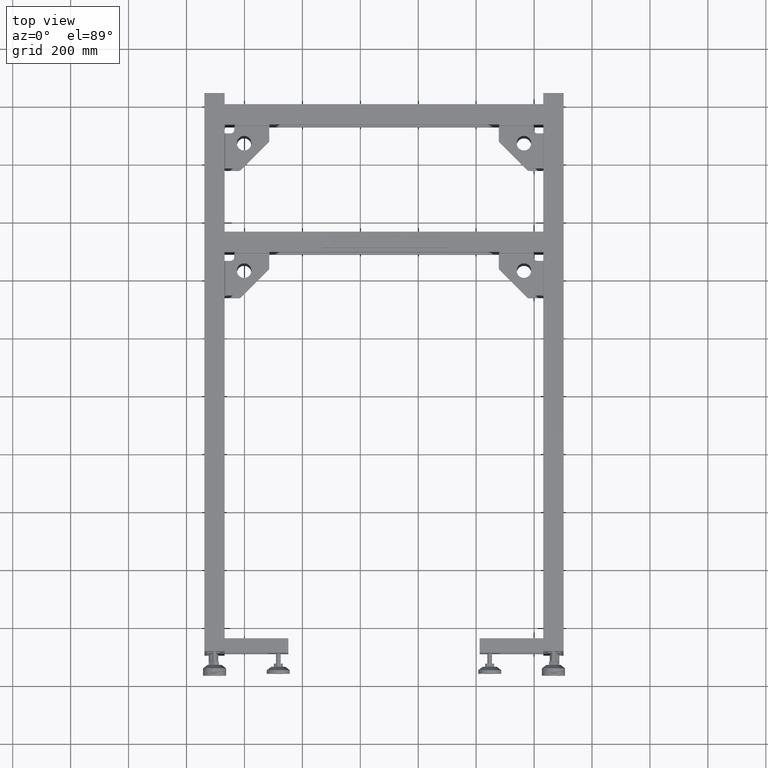
[diagram: clean part render]
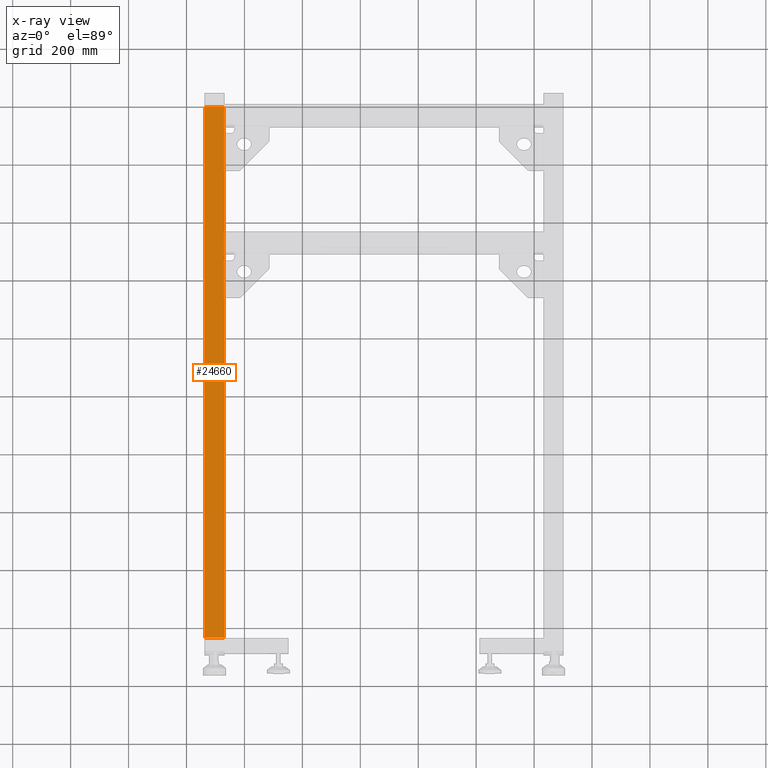
[diagram: x-ray — body ghosted, one internal face saturated and labeled with its STEP entity id]
A machine part, top view, then the same camera in x-ray: the body is ghosted and one INTERNAL B-rep face — a face not visible from any outside direction — is saturated and labeled: STEP entity #24660.
In plain terms, the highlighted planar face has unit normal (0, 0, -1).
Its self-contained STEP definition (entity closure, byte-faithful):
#3270 = ORIENTED_EDGE ( 'NONE', *, *, #40774, .F. ) ;
#3762 = ORIENTED_EDGE ( 'NONE', *, *, #56972, .T. ) ;
#7121 = VERTEX_POINT ( 'NONE', #64972 ) ;
#13256 = VECTOR ( 'NONE', #51572, 1000.000000000000000 ) ;
#16591 = CARTESIAN_POINT ( 'NONE',  ( -1336.172487437185055, 986.4410804020136538, 247.9999999999999716 ) ) ;
#18259 = PLANE ( 'NONE',  #46187 ) ;
#21246 = VERTEX_POINT ( 'NONE', #22618 ) ;
#22618 = CARTESIAN_POINT ( 'NONE',  ( -1270.172487437185055, 986.4410804020109254, 247.9999999999999716 ) ) ;
#23527 = VERTEX_POINT ( 'NONE', #50605 ) ;
#24660 = ADVANCED_FACE ( 'NONE', ( #56113 ), #18259, .T. ) ;
#25962 = VECTOR ( 'NONE', #33774, 1000.000000000000000 ) ;
#26632 = DIRECTION ( 'NONE',  ( -1.000000000000000000, 0.000000000000000000, 5.256737805990319860E-17 ) ) ;
#28921 = DIRECTION ( 'NONE',  ( -1.000000000000000000, 0.000000000000000000, -0.000000000000000000 ) ) ;
#32753 = ORIENTED_EDGE ( 'NONE', *, *, #35566, .T. ) ;
#33774 = DIRECTION ( 'NONE',  ( 1.000000000000000000, -1.682156097916908074E-15, 0.000000000000000000 ) ) ;
#35566 = EDGE_CURVE ( 'NONE', #62574, #21246, #65127, .T. ) ;
#35721 = CARTESIAN_POINT ( 'NONE',  ( -1270.172487437185055, 986.4410804020136538, 247.9999999999999716 ) ) ;
#35854 = VECTOR ( 'NONE', #26632, 1000.000000000000000 ) ;
#39633 = CARTESIAN_POINT ( 'NONE',  ( -1336.172487437185055, 986.4410804020136538, 247.9999999999999716 ) ) ;
#40774 = EDGE_CURVE ( 'NONE', #62574, #23527, #43102, .T. ) ;
#40890 = LINE ( 'NONE', #35721, #13256 ) ;
#41802 = LINE ( 'NONE', #56024, #35854 ) ;
#43102 = LINE ( 'NONE', #16591, #56455 ) ;
#45072 = EDGE_LOOP ( 'NONE', ( #62744, #3762, #3270, #32753 ) ) ;
#46187 = AXIS2_PLACEMENT_3D ( 'NONE', #56461, #51297, #28921 ) ;
#47815 = CARTESIAN_POINT ( 'NONE',  ( -1336.172487437185055, 986.4410804020109254, 248.0000000000000000 ) ) ;
#50605 = CARTESIAN_POINT ( 'NONE',  ( -1336.172487437185055, -844.5589195979888473, 247.9999999999999716 ) ) ;
#51297 = DIRECTION ( 'NONE',  ( 0.000000000000000000, 0.000000000000000000, -1.000000000000000000 ) ) ;
#51572 = DIRECTION ( 'NONE',  ( -1.000000000000000078E-15, -1.000000000000000000, -0.000000000000000000 ) ) ;
#52401 = DIRECTION ( 'NONE',  ( -1.000000000000000078E-15, -1.000000000000000000, -0.000000000000000000 ) ) ;
#56024 = CARTESIAN_POINT ( 'NONE',  ( -1336.172487437185055, -844.5589195979888473, 247.9999999999999716 ) ) ;
#56113 = FACE_OUTER_BOUND ( 'NONE', #45072, .T. ) ;
#56455 = VECTOR ( 'NONE', #52401, 1000.000000000000000 ) ;
#56461 = CARTESIAN_POINT ( 'NONE',  ( -1336.172487437185055, 986.4410804020136538, 247.9999999999999716 ) ) ;
#56972 = EDGE_CURVE ( 'NONE', #7121, #23527, #41802, .T. ) ;
#62574 = VERTEX_POINT ( 'NONE', #47815 ) ;
#62744 = ORIENTED_EDGE ( 'NONE', *, *, #64152, .T. ) ;
#64152 = EDGE_CURVE ( 'NONE', #21246, #7121, #40890, .T. ) ;
#64972 = CARTESIAN_POINT ( 'NONE',  ( -1270.172487437185055, -844.5589195979888473, 247.9999999999999716 ) ) ;
#65127 = LINE ( 'NONE', #39633, #25962 ) ;